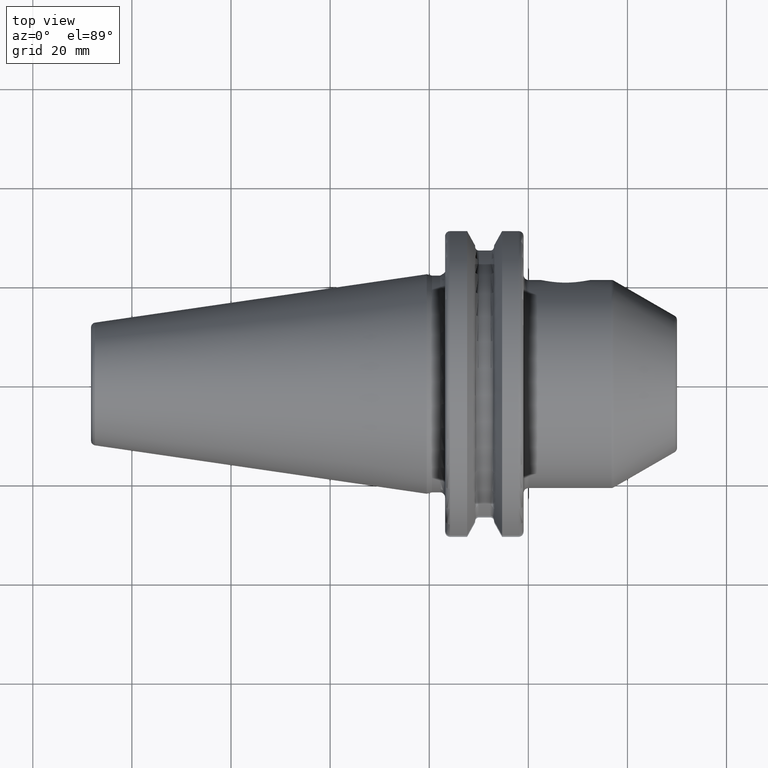
[diagram: clean part render]
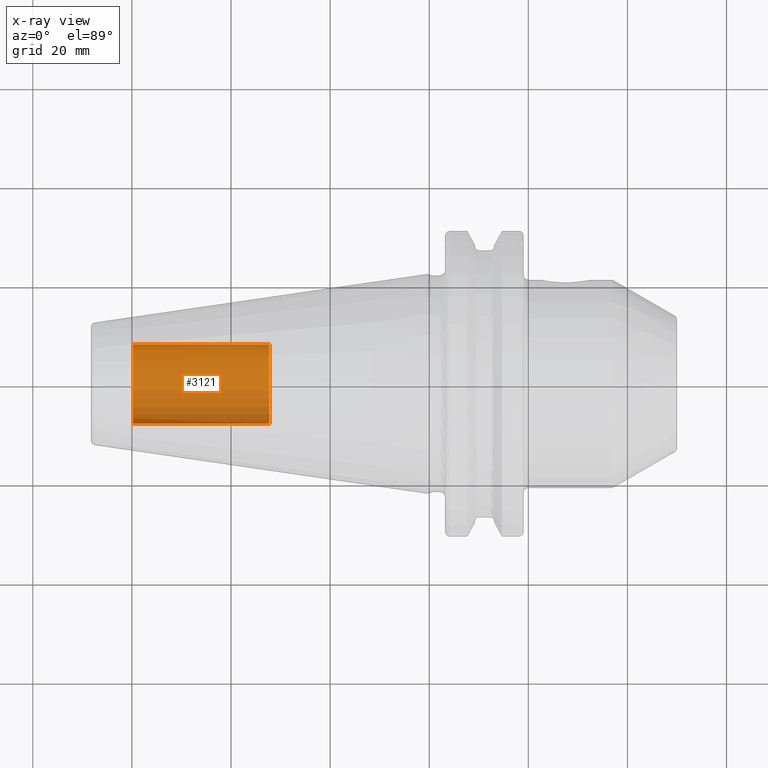
[diagram: x-ray — body ghosted, one internal face saturated and labeled with its STEP entity id]
A machine part, top view, then the same camera in x-ray: the body is ghosted and one INTERNAL B-rep face — a face not visible from any outside direction — is saturated and labeled: STEP entity #3121.
In plain terms, the highlighted cylindrical surface (partial cylindrical patch) has radius 8.0028 mm, axis along (1, 0, 0).
Its self-contained STEP definition (entity closure, byte-faithful):
#3056=CARTESIAN_POINT('',(-5.98E1,0.E0,0.E0));
#3057=DIRECTION('',(-1.E0,0.E0,0.E0));
#3058=DIRECTION('',(0.E0,1.E0,0.E0));
#3059=AXIS2_PLACEMENT_3D('',#3056,#3057,#3058);
#3061=DIRECTION('',(1.E0,0.E0,0.E0));
#3062=VECTOR('',#3061,2.755E1);
#3063=CARTESIAN_POINT('',(-5.98E1,-8.00275E0,0.E0));
#3064=LINE('',#3063,#3062);
#3070=DIRECTION('',(1.E0,0.E0,0.E0));
#3071=VECTOR('',#3070,2.755E1);
#3072=CARTESIAN_POINT('',(-5.98E1,8.00275E0,0.E0));
#3073=LINE('',#3072,#3071);
#3079=CARTESIAN_POINT('',(-3.225E1,0.E0,0.E0));
#3080=DIRECTION('',(1.E0,0.E0,0.E0));
#3081=DIRECTION('',(0.E0,-1.E0,0.E0));
#3082=AXIS2_PLACEMENT_3D('',#3079,#3080,#3081);
#3094=CARTESIAN_POINT('',(-5.98E1,8.00275E0,0.E0));
#3095=CARTESIAN_POINT('',(-5.98E1,-8.00275E0,0.E0));
#3096=VERTEX_POINT('',#3094);
#3097=VERTEX_POINT('',#3095);
#3098=CARTESIAN_POINT('',(-3.225E1,8.00275E0,0.E0));
#3099=CARTESIAN_POINT('',(-3.225E1,-8.00275E0,0.E0));
#3100=VERTEX_POINT('',#3098);
#3101=VERTEX_POINT('',#3099);
#3106=CARTESIAN_POINT('',(-5.98E1,0.E0,0.E0));
#3107=DIRECTION('',(1.E0,0.E0,0.E0));
#3108=DIRECTION('',(0.E0,1.E0,0.E0));
#3109=AXIS2_PLACEMENT_3D('',#3106,#3107,#3108);
#3110=CYLINDRICAL_SURFACE('',#3109,8.00275E0);
#3112=ORIENTED_EDGE('',*,*,#3111,.T.);
#3114=ORIENTED_EDGE('',*,*,#3113,.T.);
#3116=ORIENTED_EDGE('',*,*,#3115,.T.);
#3118=ORIENTED_EDGE('',*,*,#3117,.F.);
#3119=EDGE_LOOP('',(#3112,#3114,#3116,#3118));
#3120=FACE_OUTER_BOUND('',#3119,.F.);
#3121=ADVANCED_FACE('',(#3120),#3110,.T.);
#3060=CIRCLE('',#3059,8.00275E0);
#3083=CIRCLE('',#3082,8.00275E0);
#3111=EDGE_CURVE('',#3096,#3097,#3060,.T.);
#3113=EDGE_CURVE('',#3097,#3101,#3064,.T.);
#3115=EDGE_CURVE('',#3101,#3100,#3083,.T.);
#3117=EDGE_CURVE('',#3096,#3100,#3073,.T.);